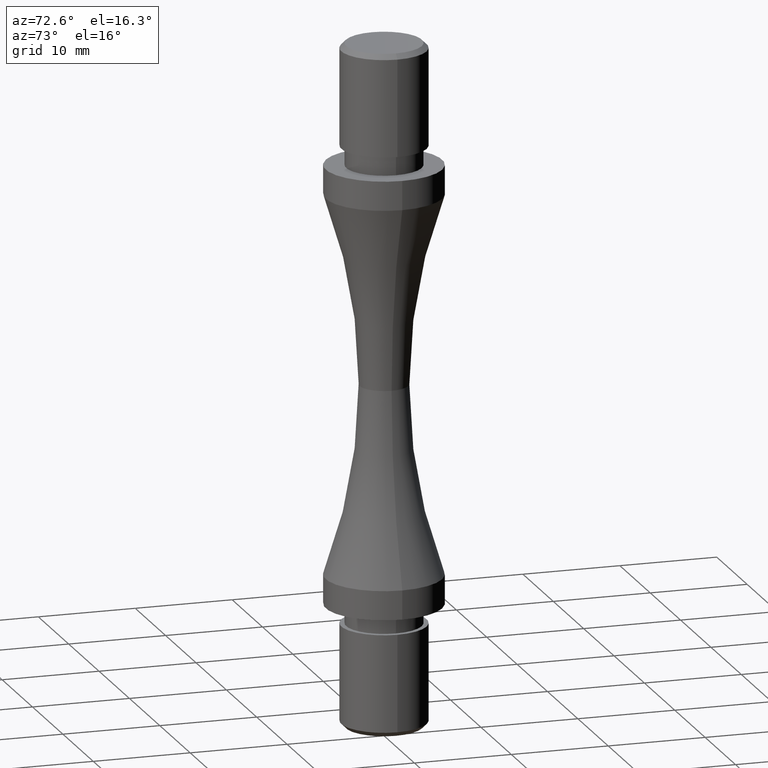
[diagram: clean part render]
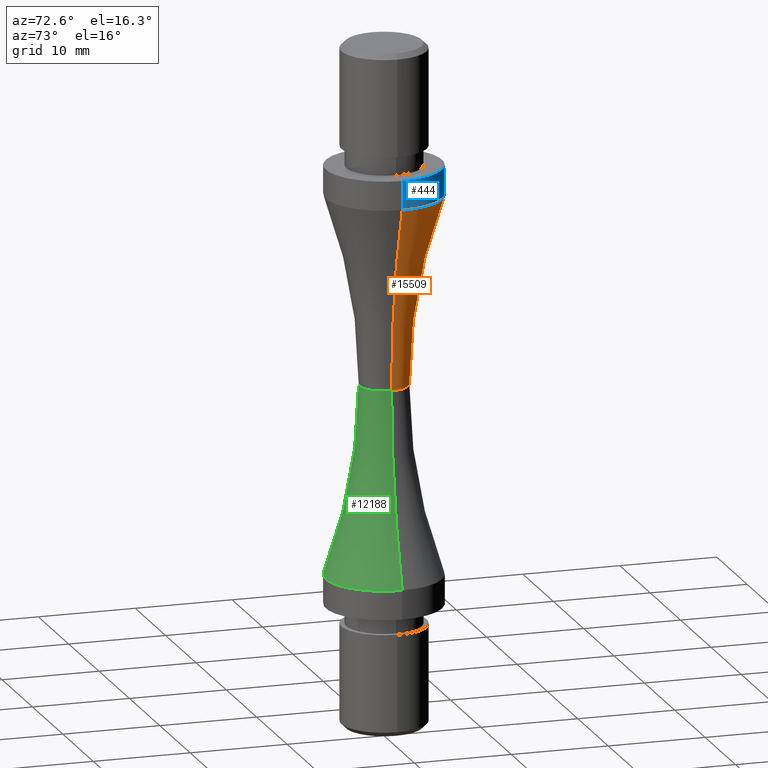
[diagram: same view with three faces highlighted in distinct colors, each labeled with its STEP entity id]
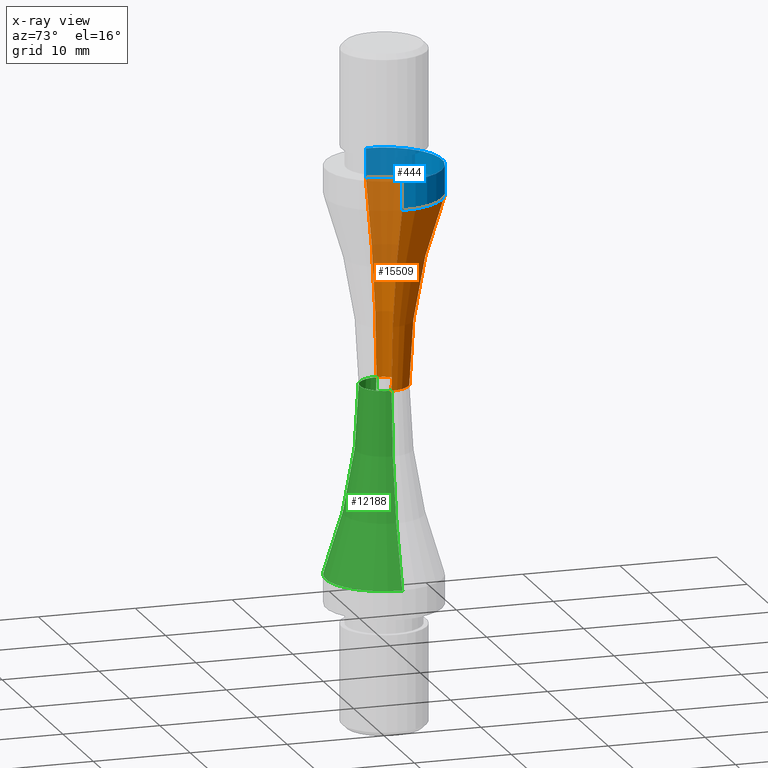
[diagram: x-ray of the same camera — body ghosted, the three highlighted faces saturated]
A machine part, auxiliary view with three faces highlighted in distinct colors.
The next image is the same camera in x-ray (body ghosted, the three faces saturated) — at least one of them is partly hidden behind the body in this view.
Their STEP definitions:

[orange] entity #15509 — the highlighted toroidal blend (fillet) surface has major radius 58.6 mm and minor (blend) radius 56.1 mm.
#1064 = AXIS2_PLACEMENT_3D ( 'NONE', #15728, #14740, #7436 ) ;
#1286 = DIRECTION ( 'NONE',  ( -1.000000000000000000, -1.224646799147353207E-16, 0.000000000000000000 ) ) ;
#1327 = CARTESIAN_POINT ( 'NONE',  ( 6.000000000000000888, -6.204105824418816700E-15, 19.50512753098525209 ) ) ;
#1403 = CARTESIAN_POINT ( 'NONE',  ( -2.500000000000009326, -6.938893903907228378E-15, 6.870268543216651909E-15 ) ) ;
#2367 = EDGE_CURVE ( 'NONE', #7290, #3426, #2994, .T. ) ;
#2994 = CIRCLE ( 'NONE', #1064, 5.999999999999996447 ) ;
#3426 = VERTEX_POINT ( 'NONE', #1327 ) ;
#3829 = FACE_OUTER_BOUND ( 'NONE', #7610, .T. ) ;
#4215 = DIRECTION ( 'NONE',  ( -1.000000000000000000, 0.000000000000000000, 0.000000000000000000 ) ) ;
#4492 = AXIS2_PLACEMENT_3D ( 'NONE', #14437, #8568, #1286 ) ;
#5458 = VERTEX_POINT ( 'NONE', #15088 ) ;
#5585 = CIRCLE ( 'NONE', #4492, 56.10000000000000142 ) ;
#5975 = CIRCLE ( 'NONE', #14625, 2.500000000000009326 ) ;
#6694 = CIRCLE ( 'NONE', #11217, 56.10000000000000142 ) ;
#6727 = CARTESIAN_POINT ( 'NONE',  ( 0.000000000000000000, -6.938893903907228378E-15, 0.000000000000000000 ) ) ;
#6964 = DIRECTION ( 'NONE',  ( -1.000000000000000000, 0.000000000000000000, 0.000000000000000000 ) ) ;
#7290 = VERTEX_POINT ( 'NONE', #13380 ) ;
#7436 = DIRECTION ( 'NONE',  ( -1.000000000000000000, 0.000000000000000000, 0.000000000000000000 ) ) ;
#7610 = EDGE_LOOP ( 'NONE', ( #13930, #14255, #8358, #14189 ) ) ;
#8194 = CARTESIAN_POINT ( 'NONE',  ( -58.60000000000001563, -6.938893903907228378E-15, 0.000000000000000000 ) ) ;
#8316 = CARTESIAN_POINT ( 'NONE',  ( 0.000000000000000000, -6.938893903907228378E-15, 6.870268543216651909E-15 ) ) ;
#8358 = ORIENTED_EDGE ( 'NONE', *, *, #2367, .T. ) ;
#8568 = DIRECTION ( 'NONE',  ( -1.224646799147353207E-16, 1.000000000000000000, 0.000000000000000000 ) ) ;
#8811 = TOROIDAL_SURFACE ( 'NONE', #11376, 58.60000000000001563, 56.10000000000000142 ) ;
#10767 = DIRECTION ( 'NONE',  ( -0.000000000000000000, -0.000000000000000000, -1.000000000000000000 ) ) ;
#11217 = AXIS2_PLACEMENT_3D ( 'NONE', #8194, #14322, #11922 ) ;
#11223 = VERTEX_POINT ( 'NONE', #1403 ) ;
#11376 = AXIS2_PLACEMENT_3D ( 'NONE', #6727, #14114, #4215 ) ;
#11922 = DIRECTION ( 'NONE',  ( 0.000000000000000000, 0.000000000000000000, -1.000000000000000000 ) ) ;
#13034 = EDGE_CURVE ( 'NONE', #11223, #5458, #5975, .T. ) ;
#13380 = CARTESIAN_POINT ( 'NONE',  ( -6.000000000000000888, -6.938893903907228378E-15, 19.50512753098525209 ) ) ;
#13930 = ORIENTED_EDGE ( 'NONE', *, *, #13034, .F. ) ;
#13989 = EDGE_CURVE ( 'NONE', #5458, #3426, #5585, .T. ) ;
#14114 = DIRECTION ( 'NONE',  ( -0.000000000000000000, -0.000000000000000000, -1.000000000000000000 ) ) ;
#14189 = ORIENTED_EDGE ( 'NONE', *, *, #13989, .F. ) ;
#14255 = ORIENTED_EDGE ( 'NONE', *, *, #15692, .T. ) ;
#14322 = DIRECTION ( 'NONE',  ( 0.000000000000000000, -1.000000000000000000, 0.000000000000000000 ) ) ;
#14437 = CARTESIAN_POINT ( 'NONE',  ( 58.60000000000001563, 2.375363390962633738E-16, 0.000000000000000000 ) ) ;
#14625 = AXIS2_PLACEMENT_3D ( 'NONE', #8316, #10767, #6964 ) ;
#14740 = DIRECTION ( 'NONE',  ( -0.000000000000000000, -0.000000000000000000, -1.000000000000000000 ) ) ;
#15088 = CARTESIAN_POINT ( 'NONE',  ( 2.500000000000009326, -6.632732204120388141E-15, 6.870268543216651909E-15 ) ) ;
#15509 = ADVANCED_FACE ( 'NONE', ( #3829 ), #8811, .F. ) ;
#15692 = EDGE_CURVE ( 'NONE', #11223, #7290, #6694, .T. ) ;
#15728 = CARTESIAN_POINT ( 'NONE',  ( 0.000000000000000000, -5.635030204184775702E-15, 19.50512753098525209 ) ) ;

[blue] entity #444 — the highlighted cylindrical surface (partial cylindrical patch) has radius 6 mm, axis along (-0, -0, -1).
#351 = ORIENTED_EDGE ( 'NONE', *, *, #2367, .F. ) ;
#444 = ADVANCED_FACE ( 'NONE', ( #11805 ), #12742, .T. ) ;
#605 = ORIENTED_EDGE ( 'NONE', *, *, #10021, .T. ) ;
#777 = CARTESIAN_POINT ( 'NONE',  ( 5.999999999999998224, -4.900242124696364024E-15, 22.50000000000000000 ) ) ;
#1064 = AXIS2_PLACEMENT_3D ( 'NONE', #15728, #14740, #7436 ) ;
#1321 = ORIENTED_EDGE ( 'NONE', *, *, #2863, .F. ) ;
#1327 = CARTESIAN_POINT ( 'NONE',  ( 6.000000000000000888, -6.204105824418816700E-15, 19.50512753098525209 ) ) ;
#1831 = CARTESIAN_POINT ( 'NONE',  ( 0.000000000000000000, -5.635030204184775702E-15, -22.50000000000000000 ) ) ;
#2213 = EDGE_LOOP ( 'NONE', ( #4123, #605, #351, #1321 ) ) ;
#2367 = EDGE_CURVE ( 'NONE', #7290, #3426, #2994, .T. ) ;
#2863 = EDGE_CURVE ( 'NONE', #12333, #7290, #10985, .T. ) ;
#2972 = AXIS2_PLACEMENT_3D ( 'NONE', #15331, #14241, #8058 ) ;
#2994 = CIRCLE ( 'NONE', #1064, 5.999999999999996447 ) ;
#3426 = VERTEX_POINT ( 'NONE', #1327 ) ;
#4123 = ORIENTED_EDGE ( 'NONE', *, *, #11374, .T. ) ;
#4809 = DIRECTION ( 'NONE',  ( -0.000000000000000000, -0.000000000000000000, -1.000000000000000000 ) ) ;
#5331 = CARTESIAN_POINT ( 'NONE',  ( -5.999999999999997335, -5.635030204184775702E-15, 22.50000000000000000 ) ) ;
#5681 = VERTEX_POINT ( 'NONE', #777 ) ;
#5808 = VECTOR ( 'NONE', #4809, 1000.000000000000000 ) ;
#5824 = CIRCLE ( 'NONE', #2972, 5.999999999999997335 ) ;
#6854 = DIRECTION ( 'NONE',  ( -0.000000000000000000, -0.000000000000000000, -1.000000000000000000 ) ) ;
#7024 = LINE ( 'NONE', #10656, #10848 ) ;
#7141 = AXIS2_PLACEMENT_3D ( 'NONE', #1831, #7797, #9025 ) ;
#7290 = VERTEX_POINT ( 'NONE', #13380 ) ;
#7436 = DIRECTION ( 'NONE',  ( -1.000000000000000000, 0.000000000000000000, 0.000000000000000000 ) ) ;
#7797 = DIRECTION ( 'NONE',  ( -0.000000000000000000, -0.000000000000000000, -1.000000000000000000 ) ) ;
#8058 = DIRECTION ( 'NONE',  ( -1.000000000000000000, 0.000000000000000000, 0.000000000000000000 ) ) ;
#9025 = DIRECTION ( 'NONE',  ( -1.000000000000000000, 0.000000000000000000, 0.000000000000000000 ) ) ;
#10021 = EDGE_CURVE ( 'NONE', #5681, #3426, #7024, .T. ) ;
#10656 = CARTESIAN_POINT ( 'NONE',  ( 5.999999999999996447, -4.900242124696364024E-15, -22.50000000000000000 ) ) ;
#10848 = VECTOR ( 'NONE', #6854, 1000.000000000000000 ) ;
#10985 = LINE ( 'NONE', #13256, #5808 ) ;
#11374 = EDGE_CURVE ( 'NONE', #12333, #5681, #5824, .T. ) ;
#11805 = FACE_OUTER_BOUND ( 'NONE', #2213, .T. ) ;
#12333 = VERTEX_POINT ( 'NONE', #5331 ) ;
#12742 = CYLINDRICAL_SURFACE ( 'NONE', #7141, 5.999999999999996447 ) ;
#13256 = CARTESIAN_POINT ( 'NONE',  ( -5.999999999999996447, -5.635030204184775702E-15, -22.50000000000000000 ) ) ;
#13380 = CARTESIAN_POINT ( 'NONE',  ( -6.000000000000000888, -6.938893903907228378E-15, 19.50512753098525209 ) ) ;
#14241 = DIRECTION ( 'NONE',  ( -0.000000000000000000, -0.000000000000000000, -1.000000000000000000 ) ) ;
#14740 = DIRECTION ( 'NONE',  ( -0.000000000000000000, -0.000000000000000000, -1.000000000000000000 ) ) ;
#15331 = CARTESIAN_POINT ( 'NONE',  ( 0.000000000000000000, -5.635030204184775702E-15, 22.50000000000000000 ) ) ;
#15728 = CARTESIAN_POINT ( 'NONE',  ( 0.000000000000000000, -5.635030204184775702E-15, 19.50512753098525209 ) ) ;

[green] entity #12188 — the highlighted toroidal blend (fillet) surface has major radius 58.6 mm and minor (blend) radius 56.1 mm.
#527 = DIRECTION ( 'NONE',  ( -1.000000000000000000, 0.000000000000000000, 0.000000000000000000 ) ) ;
#687 = CARTESIAN_POINT ( 'NONE',  ( -58.60000000000001563, -6.938893903907228378E-15, 0.000000000000000000 ) ) ;
#945 = EDGE_CURVE ( 'NONE', #1143, #12441, #7751, .T. ) ;
#1143 = VERTEX_POINT ( 'NONE', #4483 ) ;
#1276 = DIRECTION ( 'NONE',  ( -0.000000000000000000, -0.000000000000000000, -1.000000000000000000 ) ) ;
#1403 = CARTESIAN_POINT ( 'NONE',  ( -2.500000000000009326, -6.938893903907228378E-15, 6.870268543216651909E-15 ) ) ;
#1630 = CARTESIAN_POINT ( 'NONE',  ( 0.000000000000000000, -6.938893903907228378E-15, 0.000000000000000000 ) ) ;
#1814 = EDGE_CURVE ( 'NONE', #1143, #5458, #11951, .T. ) ;
#2386 = DIRECTION ( 'NONE',  ( -1.000000000000000000, -1.224646799147353207E-16, 0.000000000000000000 ) ) ;
#3158 = CIRCLE ( 'NONE', #5400, 2.500000000000009326 ) ;
#3238 = CIRCLE ( 'NONE', #6033, 56.10000000000000142 ) ;
#3711 = TOROIDAL_SURFACE ( 'NONE', #7338, 58.60000000000001563, 56.10000000000000142 ) ;
#4318 = DIRECTION ( 'NONE',  ( 0.000000000000000000, -1.000000000000000000, 0.000000000000000000 ) ) ;
#4483 = CARTESIAN_POINT ( 'NONE',  ( 5.999999999999983125, -4.900242124696365602E-15, -19.50512753098522367 ) ) ;
#4631 = ORIENTED_EDGE ( 'NONE', *, *, #12645, .T. ) ;
#5020 = DIRECTION ( 'NONE',  ( -1.000000000000000000, 0.000000000000000000, 0.000000000000000000 ) ) ;
#5400 = AXIS2_PLACEMENT_3D ( 'NONE', #14199, #15383, #8121 ) ;
#5458 = VERTEX_POINT ( 'NONE', #15088 ) ;
#6033 = AXIS2_PLACEMENT_3D ( 'NONE', #687, #4318, #12873 ) ;
#6168 = FACE_OUTER_BOUND ( 'NONE', #12850, .T. ) ;
#6608 = CARTESIAN_POINT ( 'NONE',  ( -5.999999999999983125, -5.635030204184775702E-15, -19.50512753098522367 ) ) ;
#6937 = AXIS2_PLACEMENT_3D ( 'NONE', #7522, #1276, #5020 ) ;
#7338 = AXIS2_PLACEMENT_3D ( 'NONE', #1630, #14988, #527 ) ;
#7522 = CARTESIAN_POINT ( 'NONE',  ( 0.000000000000000000, -5.635030204184775702E-15, -19.50512753098522367 ) ) ;
#7751 = CIRCLE ( 'NONE', #6937, 5.999999999999983125 ) ;
#8121 = DIRECTION ( 'NONE',  ( -1.000000000000000000, 0.000000000000000000, 0.000000000000000000 ) ) ;
#9073 = EDGE_CURVE ( 'NONE', #12441, #11223, #3238, .T. ) ;
#9752 = ORIENTED_EDGE ( 'NONE', *, *, #945, .F. ) ;
#11149 = AXIS2_PLACEMENT_3D ( 'NONE', #12162, #12216, #2386 ) ;
#11223 = VERTEX_POINT ( 'NONE', #1403 ) ;
#11443 = ORIENTED_EDGE ( 'NONE', *, *, #9073, .F. ) ;
#11951 = CIRCLE ( 'NONE', #11149, 56.10000000000000142 ) ;
#12162 = CARTESIAN_POINT ( 'NONE',  ( 58.60000000000001563, 2.375363390962633738E-16, 0.000000000000000000 ) ) ;
#12188 = ADVANCED_FACE ( 'NONE', ( #6168 ), #3711, .F. ) ;
#12216 = DIRECTION ( 'NONE',  ( -1.224646799147353207E-16, 1.000000000000000000, 0.000000000000000000 ) ) ;
#12441 = VERTEX_POINT ( 'NONE', #6608 ) ;
#12582 = ORIENTED_EDGE ( 'NONE', *, *, #1814, .T. ) ;
#12645 = EDGE_CURVE ( 'NONE', #5458, #11223, #3158, .T. ) ;
#12850 = EDGE_LOOP ( 'NONE', ( #12582, #4631, #11443, #9752 ) ) ;
#12873 = DIRECTION ( 'NONE',  ( 0.000000000000000000, 0.000000000000000000, -1.000000000000000000 ) ) ;
#14199 = CARTESIAN_POINT ( 'NONE',  ( 0.000000000000000000, -6.938893903907228378E-15, 6.870268543216651909E-15 ) ) ;
#14988 = DIRECTION ( 'NONE',  ( -0.000000000000000000, -0.000000000000000000, -1.000000000000000000 ) ) ;
#15088 = CARTESIAN_POINT ( 'NONE',  ( 2.500000000000009326, -6.632732204120388141E-15, 6.870268543216651909E-15 ) ) ;
#15383 = DIRECTION ( 'NONE',  ( -0.000000000000000000, -0.000000000000000000, -1.000000000000000000 ) ) ;